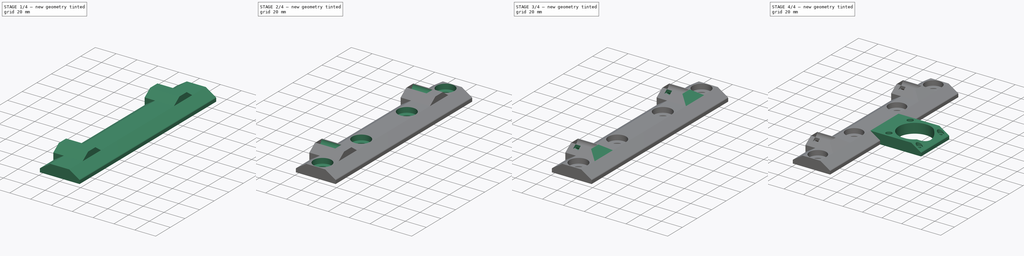
[diagram: build sequence overview — one tinted view per stage of 4, left to right]
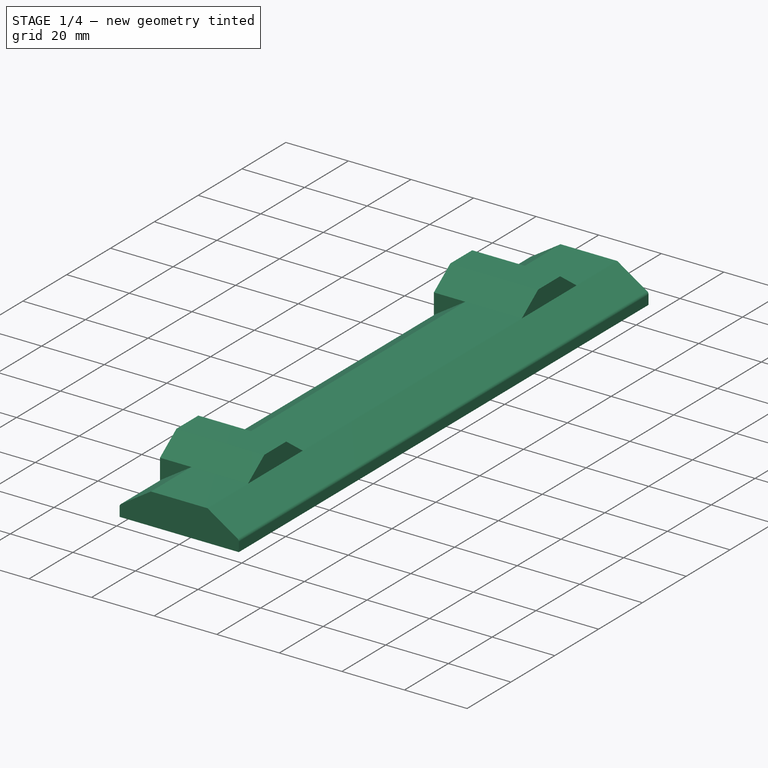
[diagram: stage 1 of 4 — iso view after this stage's code; geometry added in this stage tinted green]
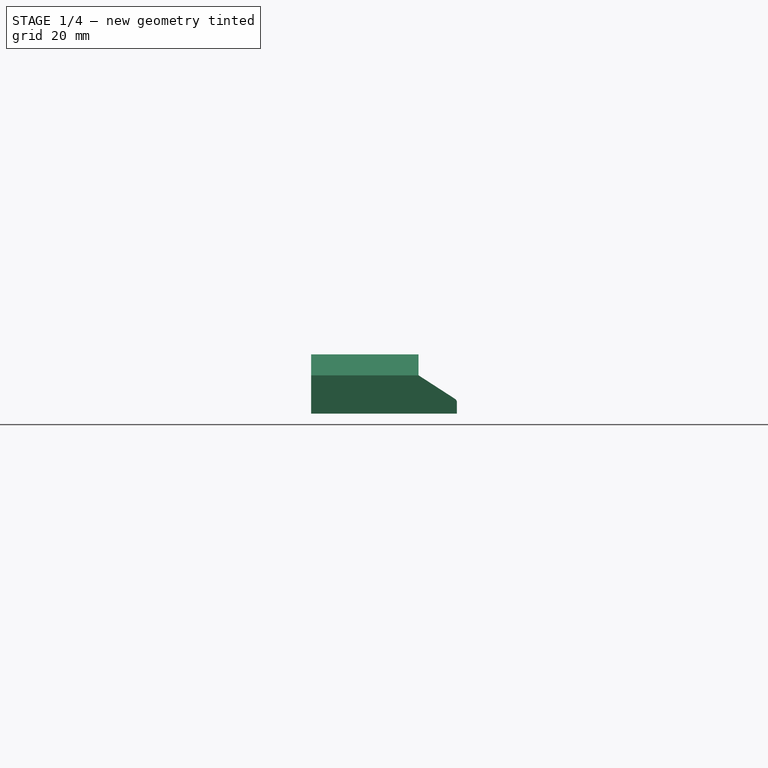
[diagram: stage 1 of 4 — front view after this stage's code; geometry added in this stage tinted green]
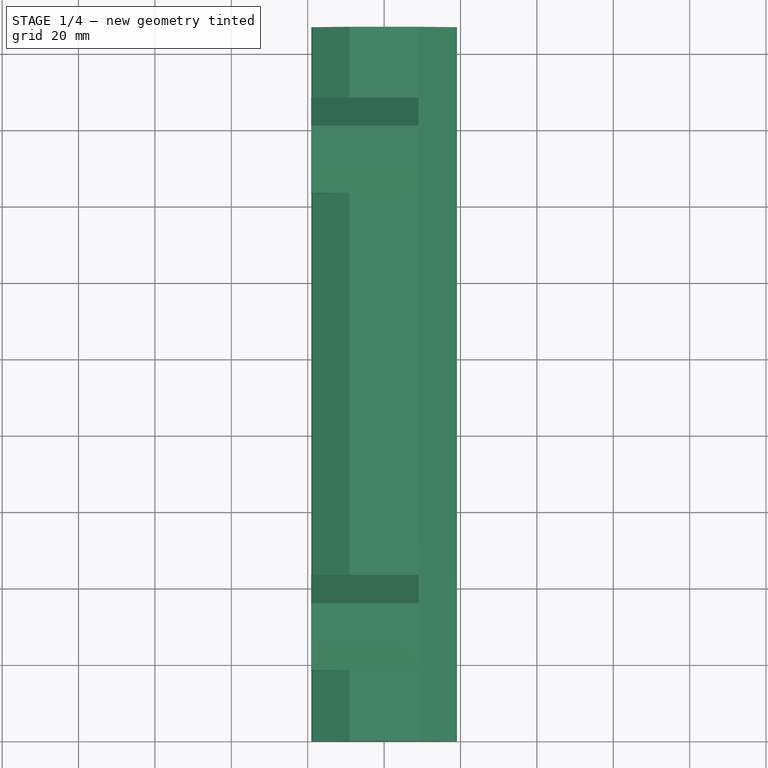
[diagram: stage 1 of 4 — top view after this stage's code; geometry added in this stage tinted green]
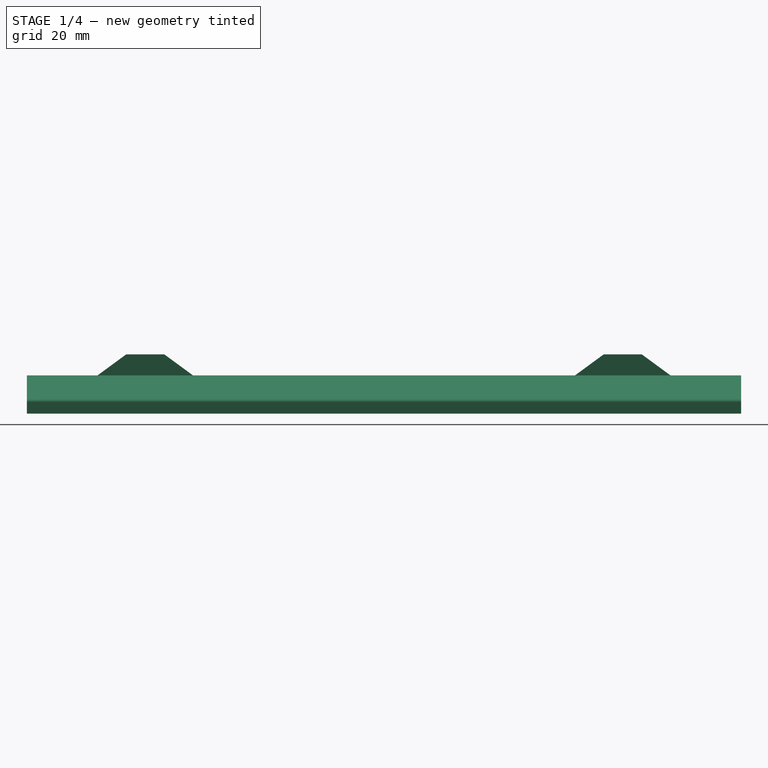
[diagram: stage 1 of 4 — right view after this stage's code; geometry added in this stage tinted green]
FCSTD DOCUMENT  (FreeCAD 0.18R)
Label: y-back-mounts
License: All rights reserved
LicenseURL: http://en.wikipedia.org/wiki/All_rights_reserved
objects: Sketcher::SketchObject×12, PartDesign::Pocket×8, PartDesign::Pad×4, Part::Feature×2, PartDesign::Body×1
note: 39 computed .brp shape members not serialized (recipe doc carries the construction recipe); baked Part::Feature solids carry a one-line shape summary decoded from their .brp

FEATURE [Sketcher::SketchObject] Sketch
  MapMode = 5
  Placement = pos=(0,0,0) rot=(1,0,0;1.5708rad)
  Support = -> [XZ_Plane]
  sketch-geometry (9):
    g0: LineSegment StartX=0 StartY=0 StartZ=0 EndX=-19.05 EndY=0 EndZ=0
    g1: LineSegment StartX=0 StartY=0 StartZ=0 EndX=19.05 EndY=0 EndZ=0
    g2: LineSegment StartX=-9.05 StartY=10 StartZ=0 EndX=9.05 EndY=10 EndZ=0
    g3: LineSegment StartX=-9.05 StartY=10 StartZ=0 EndX=-18.5923 EndY=3.84016 EndZ=0
    g4: LineSegment StartX=9.05 StartY=10 StartZ=0 EndX=18.5923 EndY=3.84016 EndZ=0
    g5: LineSegment StartX=19.05 StartY=0 StartZ=0 EndX=19.05 EndY=3 EndZ=0
    g6: LineSegment StartX=-19.05 StartY=0 StartZ=0 EndX=-19.05 EndY=3 EndZ=0
    g7: ArcOfCircle CenterX=-18.05 CenterY=3 CenterZ=0 NormalX=0 NormalY=0 NormalZ=1 AngleXU=0 Radius=1 StartAngle=2.14402 EndAngle=3.14159
    g8: ArcOfCircle CenterX=18.05 CenterY=3 CenterZ=0 NormalX=0 NormalY=0 NormalZ=1 AngleXU=0 Radius=1 StartAngle=0 EndAngle=0.997572
  constraints (24):
    c: Coincident(g0,g-1)
    c: Horizontal(g0)
    c: Coincident(g1,g0)
    c: Horizontal(g1)
    c: DistanceX(g0,g0) = 19.05
    c: Equal(g1,g0)
    c: Horizontal(g2)
    c: DistanceY(g0,g2) = 10
    c: DistanceX(g2,g1) = 10
    c: DistanceX(g0,g2) = 10
    c: Coincident(g3,g2)
    c: Coincident(g4,g2)
    c: Coincident(g5,g1)
    c: Vertical(g5)
    c: Coincident(g6,g0)
    c: Vertical(g6)
    c: Tangent(g3,g7) = -1.5708
    c: Tangent(g6,g7) = 1.5708
    c: DistanceX(g6,g7) = 1
    c: DistanceY(g6,g6) = 3
    c: Tangent(g4,g8) = 1.5708
    c: Tangent(g5,g8) = -1.5708
    c: Equal(g5,g6)
    c: DistanceX(g8,g5) = 1
FEATURE [PartDesign::Pad] Pad
  Length = 187
  Length2 = 100
  Placement = pos=(0,0,0) rot=(1,0,0;1.5708rad)
  Profile = -> Sketch
  Reversed = true
  Type = 0
FEATURE [Sketcher::SketchObject] Sketch001
  MapMode = 5
  Support = -> [XY_Plane]
  sketch-geometry (4):
    g0: Circle CenterX=0 CenterY=177.75 CenterZ=0 NormalX=0 NormalY=0 NormalZ=1 AngleXU=0 Radius=4.05
    g1: Circle CenterX=0 CenterY=9.25 CenterZ=0 NormalX=0 NormalY=0 NormalZ=1 AngleXU=0 Radius=4.05
    g2: Circle CenterX=0 CenterY=124.75 CenterZ=0 NormalX=0 NormalY=0 NormalZ=1 AngleXU=0 Radius=4.05
    g3: Circle CenterX=0 CenterY=62.25 CenterZ=0 NormalX=0 NormalY=0 NormalZ=1 AngleXU=0 Radius=4.05
  constraints (12):
    c: PointOnObject(g2,g-2)
    c: Diameter(g0) = 8.1
    c: Equal(g0,g2)
    c: Equal(g0,g3)
    c: Equal(g0,g1)
    c: PointOnObject(g0,g-2)
    c: PointOnObject(g1,g-2)
    c: PointOnObject(g3,g-2)
    c: DistanceY(g-1,g1) = 9.25
    c: DistanceY(g2,g0) = 53
    c: DistanceY(g1,g3) = 53
    c: DistanceY(g3,g2) = 62.5
FEATURE [Sketcher::SketchObject] Sketch002
  AttachmentOffset = pos=(18.5,0,9) rot=(0,0,1;0rad)
  MapMode = 5
  Placement = pos=(9,18.5,-2.1e-15) rot=(0.57735,0.57735,0.57735;2.0944rad)
  Support = -> [YZ_Plane]
  sketch-geometry (6):
    g0: LineSegment StartX=0 StartY=0 StartZ=0 EndX=25 EndY=0 EndZ=0
    g1: LineSegment StartX=0 StartY=0 StartZ=0 EndX=0 EndY=10 EndZ=0
    g2: LineSegment StartX=25 StartY=0 StartZ=0 EndX=25 EndY=10 EndZ=0
    g3: LineSegment StartX=7.5 StartY=15.5 StartZ=0 EndX=17.5 EndY=15.5 EndZ=0
    g4: LineSegment StartX=0 StartY=10 StartZ=0 EndX=7.5 EndY=15.5 EndZ=0
    g5: LineSegment StartX=17.5 StartY=15.5 StartZ=0 EndX=25 EndY=10 EndZ=0
  constraints (17):
    c: PointOnObject(g0,g-1)
    c: DistanceX(g0,g0) = 25
    c: Coincident(g1,g0)
    c: Vertical(g1)
    c: Coincident(g2,g0)
    c: Vertical(g2)
    c: DistanceY(g1,g1) = 10
    c: Equal(g2,g1)
    c: Horizontal(g3)
    c: DistanceY(g0,g3) = 15.5
    c: DistanceX(g3,g3) = 10
    c: Coincident(g4,g1)
    c: Coincident(g4,g3)
    c: Coincident(g5,g3)
    c: Coincident(g5,g2)
    c: Equal(g5,g4)
    c: Coincident(g0,g-1)
FEATURE [PartDesign::Pad] Pad001
  BaseFeature = -> Pad
  Length = 28.1
  Length2 = 100
  Placement = pos=(0,0,0) rot=(1,0,0;1.5708rad)
  Profile = -> Sketch002
  Reversed = true
  Type = 0
FEATURE [Sketcher::SketchObject] Sketch004
  AttachmentOffset = pos=(143.5,0,9) rot=(0,0,1;0rad)
  MapMode = 5
  Placement = pos=(9,143.5,-2.99e-14) rot=(0.57735,0.57735,0.57735;2.0944rad)
  Support = -> [YZ_Plane]
  sketch-geometry (6):
    g0: LineSegment StartX=0 StartY=0 StartZ=0 EndX=25 EndY=0 EndZ=0
    g1: LineSegment StartX=0 StartY=0 StartZ=0 EndX=0 EndY=10 EndZ=0
    g2: LineSegment StartX=25 StartY=0 StartZ=0 EndX=25 EndY=10 EndZ=0
    g3: LineSegment StartX=7.5 StartY=15.5 StartZ=0 EndX=17.5 EndY=15.5 EndZ=0
    g4: LineSegment StartX=0 StartY=10 StartZ=0 EndX=7.5 EndY=15.5 EndZ=0
    g5: LineSegment StartX=17.5 StartY=15.5 StartZ=0 EndX=25 EndY=10 EndZ=0
  constraints (17):
    c: PointOnObject(g0,g-1)
    c: DistanceX(g0,g0) = 25
    c: Coincident(g1,g0)
    c: Vertical(g1)
    c: Coincident(g2,g0)
    c: Vertical(g2)
    c: DistanceY(g1,g1) = 10
    c: Equal(g2,g1)
    c: Horizontal(g3)
    c: DistanceY(g0,g3) = 15.5
    c: DistanceX(g3,g3) = 10
    c: Coincident(g4,g1)
    c: Coincident(g4,g3)
    c: Coincident(g5,g3)
    c: Coincident(g5,g2)
    c: Equal(g5,g4)
    c: Coincident(g0,g-1)
FEATURE [PartDesign::Pad] Pad003
  BaseFeature = -> Pad001
  Length = 28.1
  Length2 = 100
  Placement = pos=(0,0,0) rot=(1,0,0;1.5708rad)
  Profile = -> Sketch004
  Reversed = true
  Type = 0
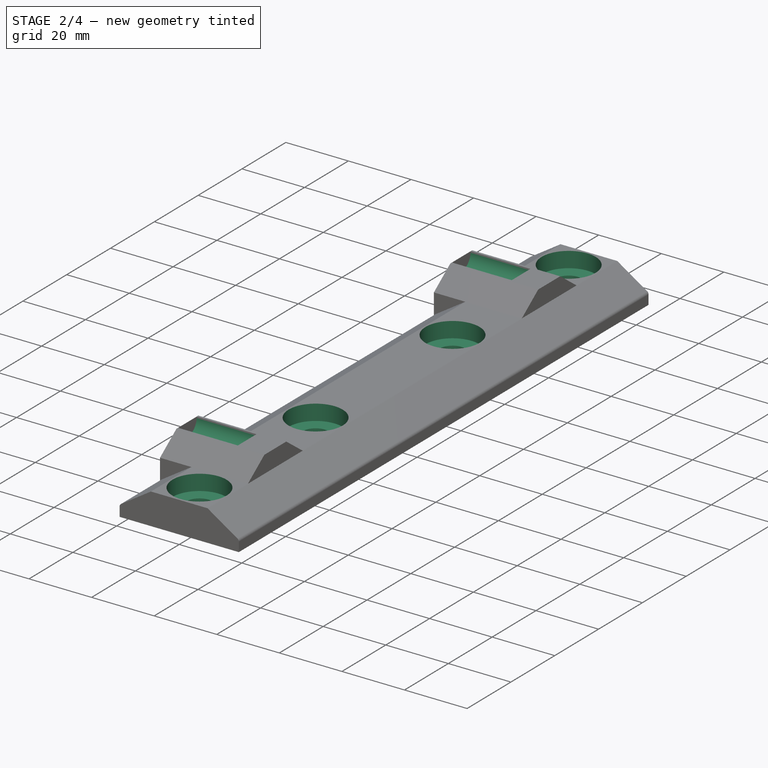
[diagram: stage 2 of 4 — iso view after this stage's code; geometry added in this stage tinted green]
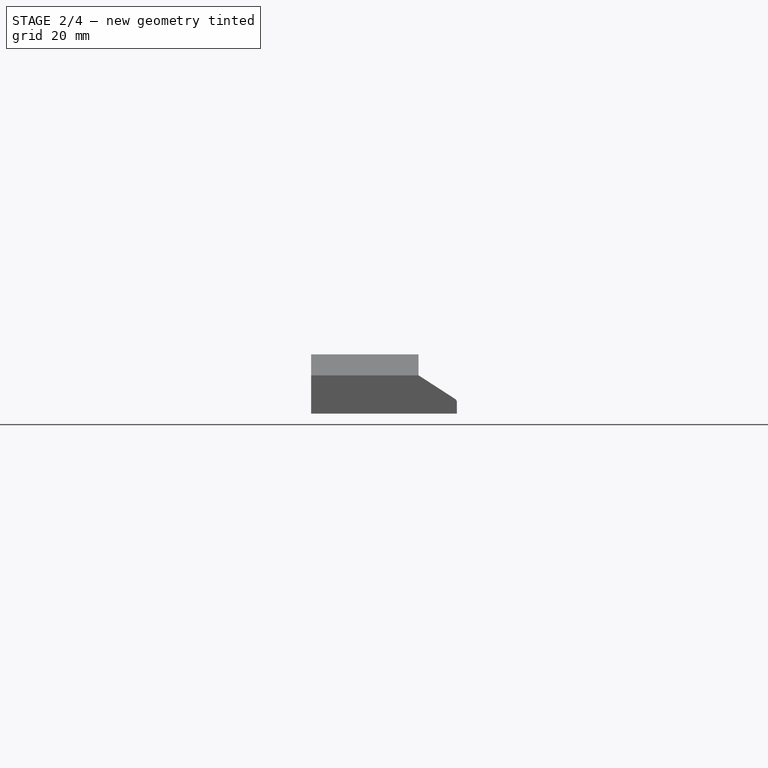
[diagram: stage 2 of 4 — front view after this stage's code; geometry added in this stage tinted green]
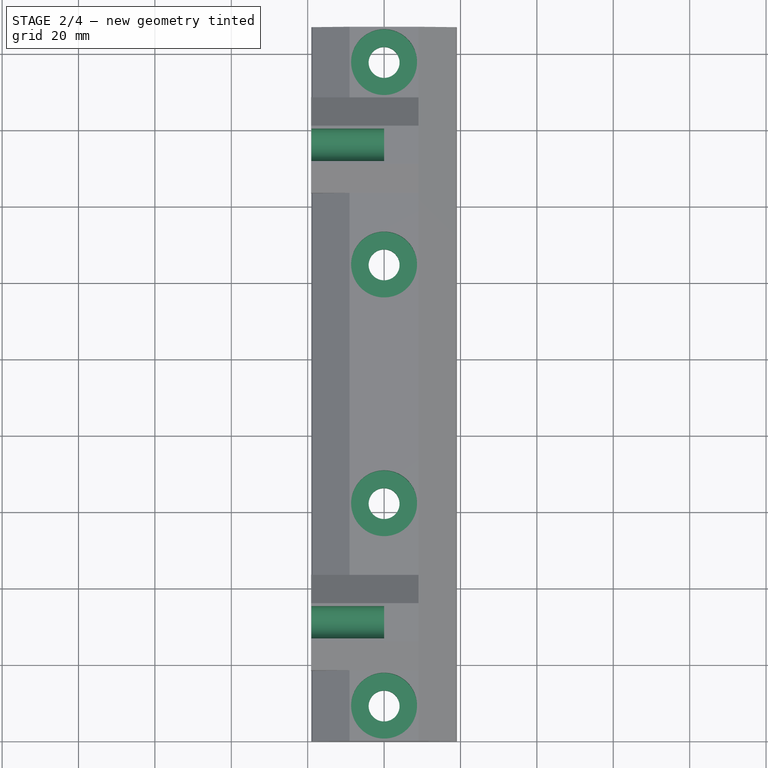
[diagram: stage 2 of 4 — top view after this stage's code; geometry added in this stage tinted green]
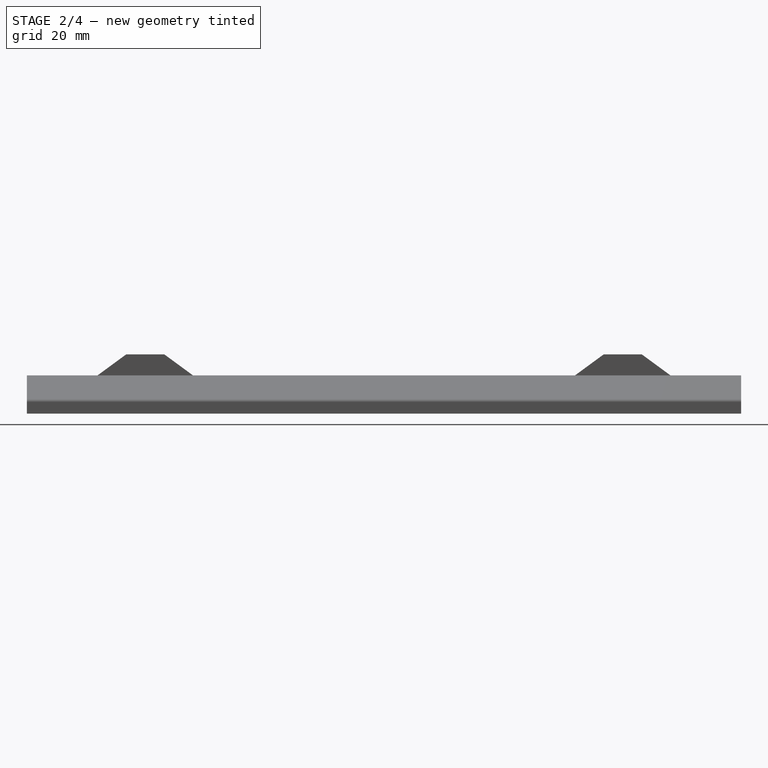
[diagram: stage 2 of 4 — right view after this stage's code; geometry added in this stage tinted green]
FEATURE [PartDesign::Pocket] Pocket
  BaseFeature = -> Pad003
  Length = 5
  Length2 = 100
  Placement = pos=(0,0,0) rot=(1,0,0;1.5708rad)
  Profile = -> Sketch001
  Reversed = true
  Type = 1
FEATURE [Sketcher::SketchObject] Sketch005
  AttachmentOffset = pos=(0,0,10) rot=(0,0,1;0rad)
  MapMode = 5
  Placement = pos=(0,0,10) rot=(0,0,1;0rad)
  Support = -> [XY_Plane]
  sketch-geometry (4):
    g0: Circle CenterX=0 CenterY=177.75 CenterZ=0 NormalX=0 NormalY=0 NormalZ=1 AngleXU=0 Radius=8.625
    g1: Circle CenterX=0 CenterY=124.75 CenterZ=0 NormalX=0 NormalY=0 NormalZ=1 AngleXU=0 Radius=8.625
    g2: Circle CenterX=0 CenterY=9.25 CenterZ=0 NormalX=0 NormalY=0 NormalZ=1 AngleXU=0 Radius=8.625
    g3: Circle CenterX=0 CenterY=62.25 CenterZ=0 NormalX=0 NormalY=0 NormalZ=1 AngleXU=0 Radius=8.625
  constraints (12):
    c: PointOnObject(g1,g-2)
    c: PointOnObject(g2,g-2)
    c: Diameter(g0) = 17.25
    c: Equal(g1,g0)
    c: Equal(g1,g2)
    c: PointOnObject(g3,g-2)
    c: Equal(g0,g3)
    c: DistanceY(g-1,g2) = 9.25
    c: DistanceY(g2,g3) = 53
    c: DistanceY(g3,g1) = 62.5
    c: DistanceY(g1,g0) = 53
    c: PointOnObject(g0,g-2)
FEATURE [PartDesign::Pocket] Pocket001
  BaseFeature = -> Pocket
  Length = 5
  Length2 = 100
  Placement = pos=(0,0,0) rot=(1,0,0;1.5708rad)
  Profile = -> Sketch005
  Type = 0
FEATURE [Sketcher::SketchObject] Sketch006
  AttachmentOffset = pos=(0,0,-19.05) rot=(0,0,1;0rad)
  MapMode = 5
  Placement = pos=(-19.05,4.2e-15,-4.2e-15) rot=(0.57735,0.57735,0.57735;2.0944rad)
  Support = -> [YZ_Plane]
  sketch-geometry (6):
    g0: ArcOfCircle CenterX=31 CenterY=15.5 CenterZ=0 NormalX=0 NormalY=0 NormalZ=1 AngleXU=0 Radius=4.25 StartAngle=3.14159 EndAngle=6.28319
    g1: LineSegment StartX=31 StartY=15.5 StartZ=0 EndX=35.25 EndY=15.5 EndZ=0
    g2: LineSegment StartX=31 StartY=15.5 StartZ=0 EndX=26.75 EndY=15.5 EndZ=0
    g3: ArcOfCircle CenterX=156 CenterY=15.5 CenterZ=0 NormalX=0 NormalY=0 NormalZ=1 AngleXU=0 Radius=4.25 StartAngle=3.14159 EndAngle=6.28319
    g4: LineSegment StartX=156 StartY=15.5 StartZ=0 EndX=160.25 EndY=15.5 EndZ=0
    g5: LineSegment StartX=156 StartY=15.5 StartZ=0 EndX=151.75 EndY=15.5 EndZ=0
  constraints (18):
    c: Radius(g0) = 4.25
    c: DistanceY(g-1,g0) = 15.5
    c: DistanceX(g-1,g0) = 31
    c: Coincident(g1,g0)
    c: Horizontal(g1)
    c: Coincident(g2,g0)
    c: Horizontal(g2)
    c: Coincident(g0,g2)
    c: Coincident(g0,g1)
    c: Equal(g3,g0)
    c: DistanceY(g3,g0) = 0
    c: DistanceX(g0,g3) = 125
    c: Coincident(g4,g3)
    c: Horizontal(g4)
    c: Coincident(g5,g3)
    c: Horizontal(g5)
    c: Coincident(g3,g5)
    c: Coincident(g3,g4)
FEATURE [PartDesign::Pocket] Pocket002
  BaseFeature = -> Pocket001
  Length = 19.05
  Length2 = 100
  Placement = pos=(0,0,0) rot=(1,0,0;1.5708rad)
  Profile = -> Sketch006
  Reversed = true
  Type = 0
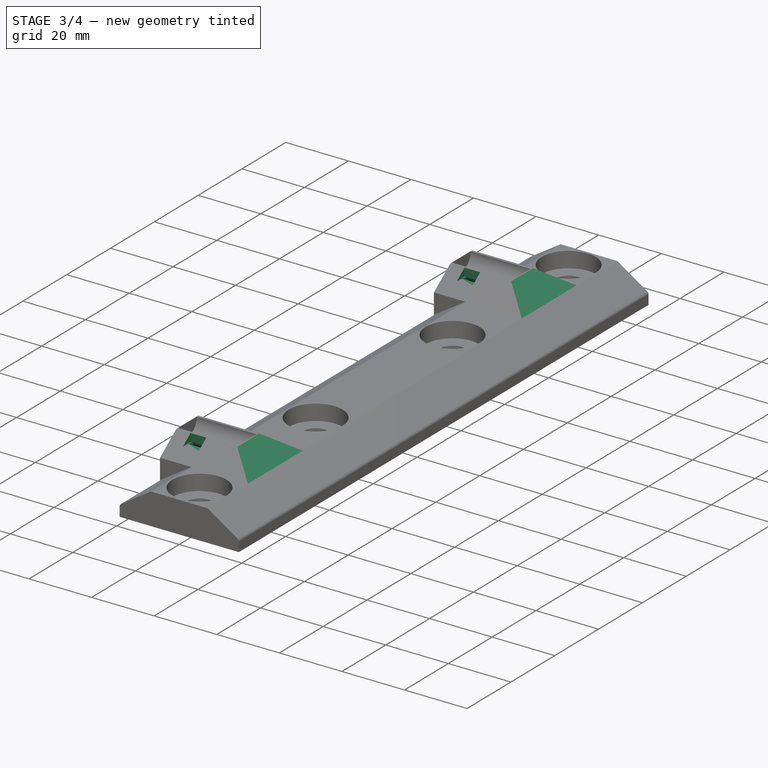
[diagram: stage 3 of 4 — iso view after this stage's code; geometry added in this stage tinted green]
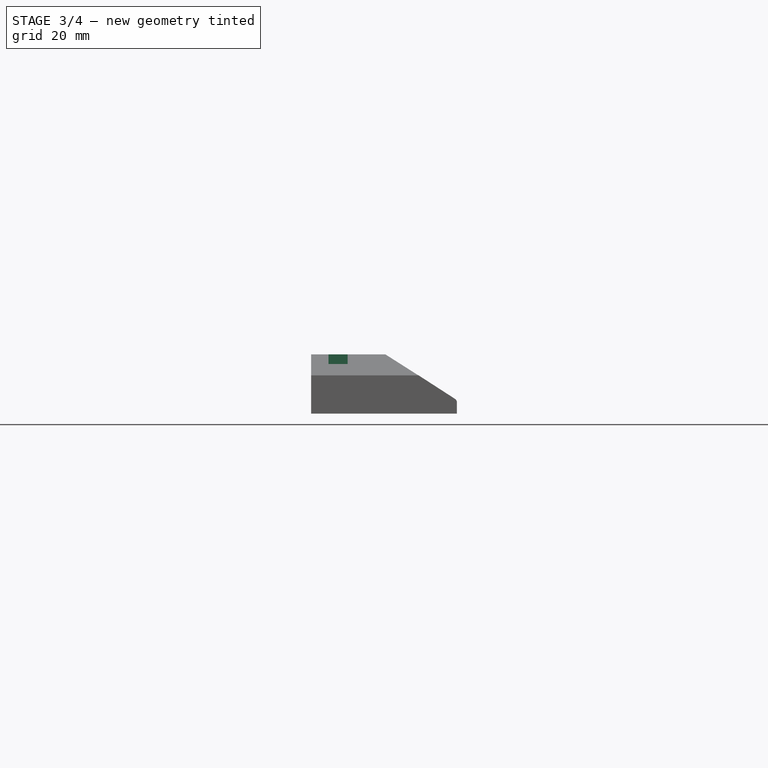
[diagram: stage 3 of 4 — front view after this stage's code; geometry added in this stage tinted green]
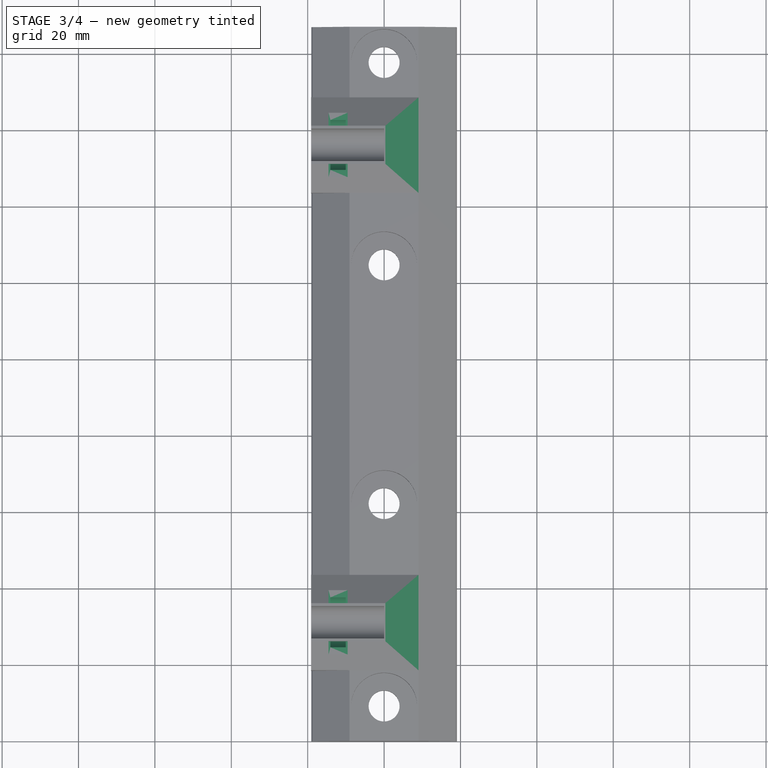
[diagram: stage 3 of 4 — top view after this stage's code; geometry added in this stage tinted green]
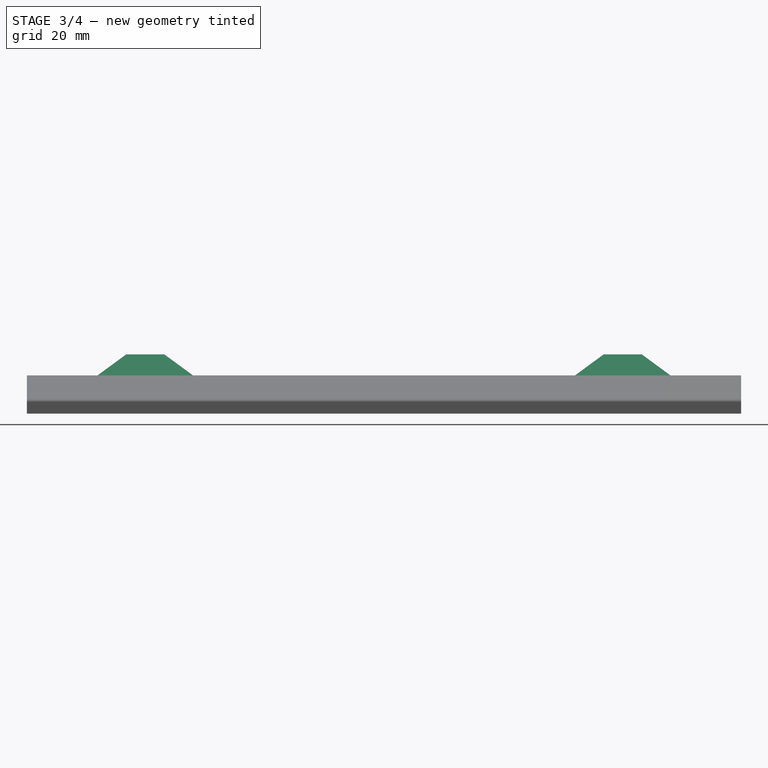
[diagram: stage 3 of 4 — right view after this stage's code; geometry added in this stage tinted green]
FEATURE [Sketcher::SketchObject] Sketch007
  AttachmentOffset = pos=(0,0,-14.05) rot=(0,0,1;0rad)
  MapMode = 5
  Placement = pos=(-14.05,3.1e-15,-3.1e-15) rot=(0.57735,0.57735,0.57735;2.0944rad)
  Support = -> [YZ_Plane]
  sketch-geometry (4):
    g0: Circle CenterX=31 CenterY=15.5 CenterZ=0 NormalX=0 NormalY=0 NormalZ=1 AngleXU=0 Radius=5.6
    g1: Circle CenterX=31 CenterY=15.5 CenterZ=0 NormalX=0 NormalY=0 NormalZ=1 AngleXU=0 Radius=7
    g2: Circle CenterX=156 CenterY=15.5 CenterZ=0 NormalX=0 NormalY=0 NormalZ=1 AngleXU=0 Radius=5.6
    g3: Circle CenterX=156 CenterY=15.5 CenterZ=0 NormalX=0 NormalY=0 NormalZ=1 AngleXU=0 Radius=7
  constraints (10):
    c: Coincident(g1,g0)
    c: Radius(g0) = 5.6
    c: Radius(g1) = 7
    c: DistanceY(g-1,g0) = 15.5
    c: DistanceX(g-1,g0) = 31
    c: Coincident(g3,g2)
    c: Equal(g2,g0)
    c: Equal(g3,g1)
    c: DistanceY(g0,g2) = 0
    c: DistanceX(g0,g2) = 125
FEATURE [PartDesign::Pocket] Pocket003
  BaseFeature = -> Pocket002
  Length = 4
  Length2 = 100
  Placement = pos=(0,0,0) rot=(1,0,0;1.5708rad)
  Profile = -> Sketch007
  Reversed = true
  Type = 0
FEATURE [Sketcher::SketchObject] Sketch008
  MapMode = 5
  Placement = pos=(0,0,0) rot=(1,0,0;1.5708rad)
  Support = -> [XZ_Plane]
  sketch-geometry (3):
    g0: LineSegment StartX=0.186016 StartY=15.6 StartZ=0 EndX=9 EndY=15.6 EndZ=0
    g1: LineSegment StartX=9 StartY=15.6 StartZ=0 EndX=9 EndY=10 EndZ=0
    g2: LineSegment StartX=0.186016 StartY=15.6 StartZ=0 EndX=9 EndY=10 EndZ=0
  constraints (9):
    c: Horizontal(g0)
    c: Coincident(g1,g0)
    c: Vertical(g1)
    c: Coincident(g2,g0)
    c: Coincident(g2,g1)
    c: DistanceY(g-1,g1) = 10
    c: DistanceX(g-1,g0) = 9
    c: DistanceY(g-1,g0) = 15.6
    c: Angle(g1,g2) = 1.00479
FEATURE [PartDesign::Pocket] Pocket004
  BaseFeature = -> Pocket003
  Length = 5
  Length2 = 100
  Placement = pos=(0,0,0) rot=(1,0,0;1.5708rad)
  Profile = -> Sketch008
  Type = 1
FEATURE [Sketcher::SketchObject] Sketch009
  AttachmentOffset = pos=(0,0,-14.55) rot=(0,0,1;0rad)
  MapMode = 5
  Placement = pos=(-14.55,3.2e-15,-3.2e-15) rot=(0.57735,0.57735,0.57735;2.0944rad)
  Support = -> [YZ_Plane]
  sketch-geometry (16):
    g0: LineSegment StartX=22 StartY=16.48 StartZ=0 EndX=26 EndY=16.48 EndZ=0
    g1: LineSegment StartX=26 StartY=16.48 StartZ=0 EndX=26 EndY=12.98 EndZ=0
    g2: LineSegment StartX=26 StartY=12.98 StartZ=0 EndX=22 EndY=12.98 EndZ=0
    g3: LineSegment StartX=22 StartY=12.98 StartZ=0 EndX=22 EndY=16.48 EndZ=0
    g4: LineSegment StartX=36 StartY=16.48 StartZ=0 EndX=40 EndY=16.48 EndZ=0
    g5: LineSegment StartX=40 StartY=16.48 StartZ=0 EndX=40 EndY=12.98 EndZ=0
    g6: LineSegment StartX=40 StartY=12.98 StartZ=0 EndX=36 EndY=12.98 EndZ=0
    g7: LineSegment StartX=36 StartY=12.98 StartZ=0 EndX=36 EndY=16.48 EndZ=0
    g8: LineSegment StartX=147 StartY=16.48 StartZ=0 EndX=151 EndY=16.48 EndZ=0
    g9: LineSegment StartX=151 StartY=16.48 StartZ=0 EndX=151 EndY=12.98 EndZ=0
    g10: LineSegment StartX=151 StartY=12.98 StartZ=0 EndX=147 EndY=12.98 EndZ=0
    g11: LineSegment StartX=147 StartY=12.98 StartZ=0 EndX=147 EndY=16.48 EndZ=0
    g12: LineSegment StartX=161 StartY=16.48 StartZ=0 EndX=165 EndY=16.48 EndZ=0
    g13: LineSegment StartX=165 StartY=16.48 StartZ=0 EndX=165 EndY=12.98 EndZ=0
    g14: LineSegment StartX=165 StartY=12.98 StartZ=0 EndX=161 EndY=12.98 EndZ=0
    g15: LineSegment StartX=161 StartY=12.98 StartZ=0 EndX=161 EndY=16.48 EndZ=0
  constraints (48):
    c: Coincident(g0,g1)
    c: Coincident(g1,g2)
    c: Coincident(g2,g3)
    c: Coincident(g3,g0)
    c: Horizontal(g0)
    c: Horizontal(g2)
    c: Vertical(g1)
    c: Vertical(g3)
    c: Coincident(g4,g5)
    c: Coincident(g5,g6)
    c: Coincident(g6,g7)
    c: Coincident(g7,g4)
    c: Horizontal(g4)
    c: Horizontal(g6)
    c: Vertical(g5)
    c: Vertical(g7)
    c: DistanceX(g0,g0) = 4
    c: Equal(g4,g0)
    c: DistanceY(g4,g0) = 0
    c: DistanceY(g-1,g2) = 12.98
    c: DistanceY(g3,g3) = 3.5
    c: Equal(g7,g1)
    c: DistanceX(g0,g4) = 10
    c: DistanceX(g-1,g2) = 22
    c: Coincident(g8,g9)
    c: Coincident(g9,g10)
    c: Coincident(g10,g11)
    c: Coincident(g11,g8)
    c: Horizontal(g8)
    c: Horizontal(g10)
    c: Vertical(g9)
    c: Vertical(g11)
    c: Coincident(g12,g13)
    c: Coincident(g13,g14)
    c: Coincident(g14,g15)
    c: Coincident(g15,g12)
    c: Horizontal(g12)
    c: Horizontal(g14)
    c: Vertical(g13)
    c: Vertical(g15)
    c: Equal(g12,g8)
    c: Equal(g8,g4)
    c: Equal(g15,g11)
    c: Equal(g11,g3)
    c: DistanceY(g4,g8) = 0
    c: DistanceY(g8,g12) = 0
    c: DistanceX(g8,g12) = 10
    c: DistanceX(g2,g10) = 125
FEATURE [PartDesign::Pocket] Pocket005
  BaseFeature = -> Pocket004
  Length = 5
  Length2 = 100
  Placement = pos=(0,0,0) rot=(1,0,0;1.5708rad)
  Profile = -> Sketch009
  Reversed = true
  Type = 0
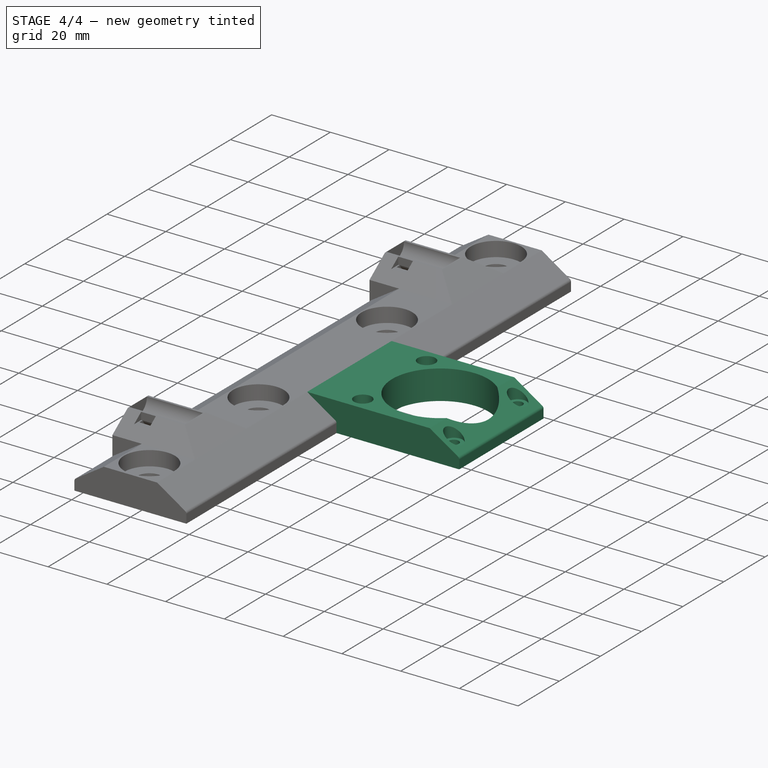
[diagram: stage 4 of 4 — iso view after this stage's code; geometry added in this stage tinted green]
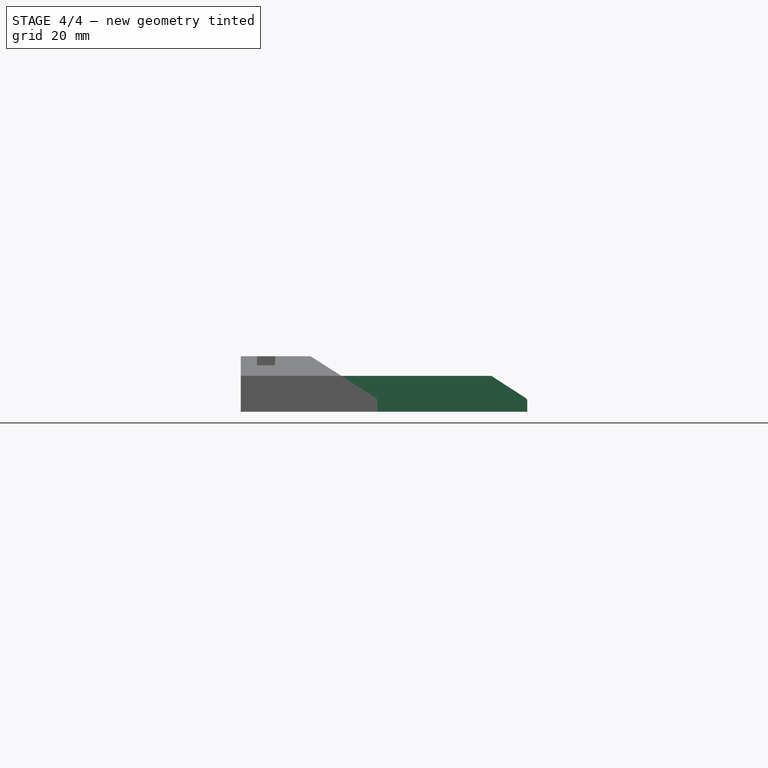
[diagram: stage 4 of 4 — front view after this stage's code; geometry added in this stage tinted green]
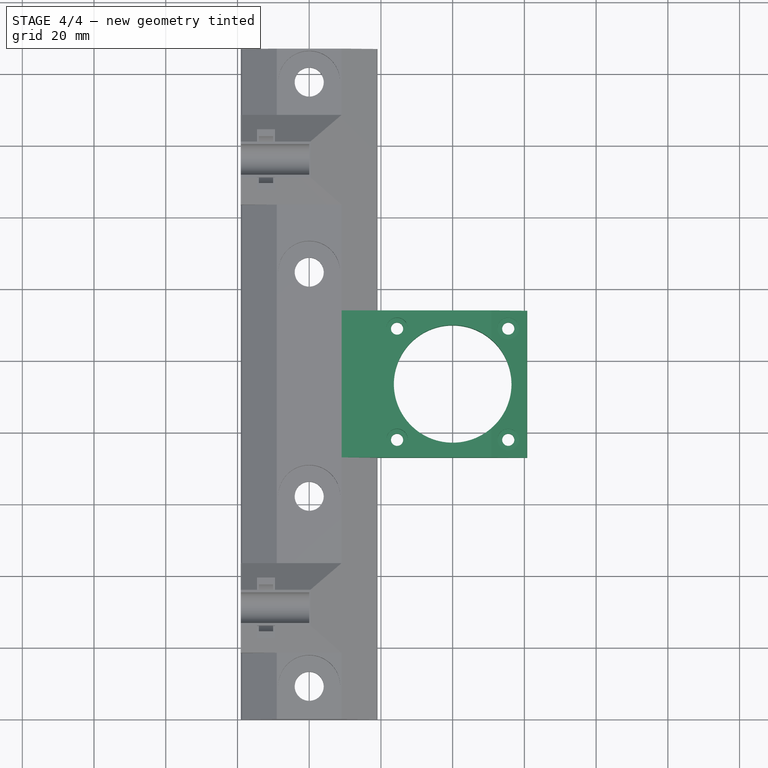
[diagram: stage 4 of 4 — top view after this stage's code; geometry added in this stage tinted green]
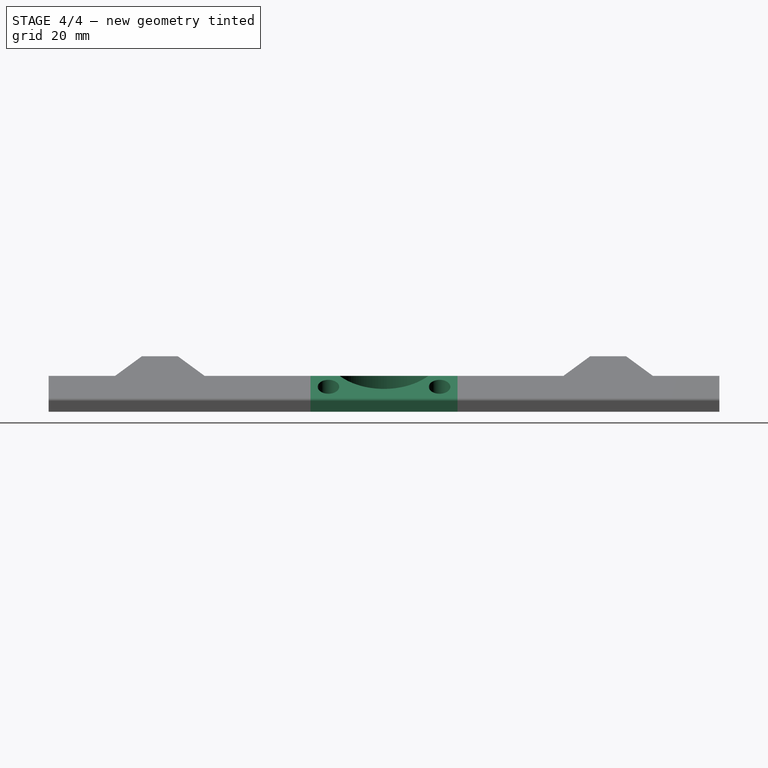
[diagram: stage 4 of 4 — right view after this stage's code; geometry added in this stage tinted green]
FEATURE [Part::Feature] y_stepper_mount_hz
  Placement = pos=(19,114,0) rot=(0,0,1;3.14159rad)
  shape: bbox 79.86 x 41 x 10.98 mm, 35 faces (baked)
FEATURE [Sketcher::SketchObject] Sketch012
  AttachmentOffset = pos=(0,0,-73) rot=(0,0,1;0rad)
  MapMode = 5
  Placement = pos=(0,73,-1.62e-14) rot=(1,0,0;1.5708rad)
  Support = -> [XZ_Plane]
  sketch-geometry (6):
    g0: LineSegment StartX=9.05 StartY=10 StartZ=0 EndX=50.81 EndY=10 EndZ=0
    g1: LineSegment StartX=50.81 StartY=10 StartZ=0 EndX=60.3523 EndY=3.84016 EndZ=0
    g2: LineSegment StartX=60.81 StartY=3 StartZ=0 EndX=60.81 EndY=0 EndZ=0
    g3: LineSegment StartX=60.81 StartY=0 StartZ=0 EndX=9.05 EndY=0 EndZ=0
    g4: LineSegment StartX=9.05 StartY=0 StartZ=0 EndX=9.05 EndY=10 EndZ=0
    g5: ArcOfCircle CenterX=59.81 CenterY=3 CenterZ=0 NormalX=0 NormalY=0 NormalZ=1 AngleXU=0 Radius=1 StartAngle=0 EndAngle=0.997572
  constraints (17):
    c: Horizontal(g0)
    c: Coincident(g1,g0)
    c: PointOnObject(g2,g-1)
    c: Vertical(g2)
    c: Coincident(g3,g2)
    c: Horizontal(g3)
    c: Coincident(g4,g3)
    c: Coincident(g4,g0)
    c: Vertical(g4)
    c: Tangent(g1,g5) = 1.5708
    c: Tangent(g2,g5) = 1.5708
    c: DistanceY(g2,g2) = 3
    c: DistanceX(g0,g2) = 10
    c: DistanceX(g5,g2) = 1
    c: DistanceY(g2,g0) = 10
    c: DistanceX(g-1,g3) = 9.05
    c: DistanceX(g3,g3) = 51.76
FEATURE [PartDesign::Pad] Pad005
  BaseFeature = -> Pocket005
  Length = 41
  Length2 = 100
  Placement = pos=(0,0,0) rot=(1,0,0;1.5708rad)
  Profile = -> Sketch012
  Reversed = true
  Type = 0
FEATURE [Sketcher::SketchObject] Sketch013
  MapMode = 5
  Support = -> [XY_Plane]
  sketch-geometry (5):
    g0: Circle CenterX=24.5 CenterY=78 CenterZ=0 NormalX=0 NormalY=0 NormalZ=1 AngleXU=0 Radius=1.7
    g1: Circle CenterX=55.5 CenterY=78 CenterZ=0 NormalX=0 NormalY=0 NormalZ=1 AngleXU=0 Radius=1.7
    g2: Circle CenterX=55.5 CenterY=109 CenterZ=0 NormalX=0 NormalY=0 NormalZ=1 AngleXU=0 Radius=1.7
    g3: Circle CenterX=24.5 CenterY=109 CenterZ=0 NormalX=0 NormalY=0 NormalZ=1 AngleXU=0 Radius=1.7
    g4: Circle CenterX=40 CenterY=93.5 CenterZ=0 NormalX=0 NormalY=0 NormalZ=1 AngleXU=0 Radius=16.4
  constraints (15):
    c: Diameter(g4) = 32.8
    c: DistanceY(g-1,g4) = 93.5
    c: DistanceX(g-1,g4) = 40
    c: DistanceX(g3,g4) = 15.5
    c: DistanceX(g4,g2) = 15.5
    c: DistanceY(g2,g3) = 0
    c: DistanceY(g4,g3) = 15.5
    c: DistanceY(g0,g3) = 31
    c: DistanceX(g0,g3) = 0
    c: DistanceY(g0,g1) = 0
    c: DistanceX(g2,g1) = 0
    c: Diameter(g3) = 3.4
    c: Equal(g2,g3)
    c: Equal(g0,g3)
    c: Equal(g1,g3)
FEATURE [Part::Feature] stepper_nema17
  Placement = pos=(40,93.5,-46) rot=(0,0,1;0rad)
  shape: bbox 41.86 x 40.63 x 69.5 mm, 80 faces (baked)
FEATURE [PartDesign::Pocket] Pocket006
  BaseFeature = -> Pad005
  Length = 5
  Length2 = 100
  Placement = pos=(0,0,0) rot=(1,0,0;1.5708rad)
  Profile = -> Sketch013
  Reversed = true
  Type = 1
FEATURE [Sketcher::SketchObject] Sketch014
  AttachmentOffset = pos=(0,0,10) rot=(0,0,1;0rad)
  MapMode = 5
  Placement = pos=(0,0,10) rot=(0,0,1;0rad)
  Support = -> [XY_Plane]
  sketch-geometry (5):
    g0: GeomPoint X=40 Y=93.5 Z=0
    g1: Circle CenterX=24.5 CenterY=109 CenterZ=0 NormalX=0 NormalY=0 NormalZ=1 AngleXU=0 Radius=3
    g2: Circle CenterX=24.5 CenterY=78 CenterZ=0 NormalX=0 NormalY=0 NormalZ=1 AngleXU=0 Radius=3
    g3: Circle CenterX=55.5 CenterY=78 CenterZ=0 NormalX=0 NormalY=0 NormalZ=1 AngleXU=0 Radius=3
    g4: Circle CenterX=55.5 CenterY=109 CenterZ=0 NormalX=0 NormalY=0 NormalZ=1 AngleXU=0 Radius=3
  constraints (14):
    c: DistanceY(g-1,g0) = 93.5
    c: DistanceX(g-1,g0) = 40
    c: Diameter(g1) = 6
    c: Equal(g4,g1)
    c: Equal(g2,g1)
    c: Equal(g3,g1)
    c: DistanceY(g1,g4) = 0
    c: DistanceY(g3,g2) = 0
    c: DistanceX(g1,g2) = 0
    c: DistanceX(g4,g3) = 0
    c: DistanceX(g1,g0) = 15.5
    c: DistanceY(g2,g0) = 15.5
    c: DistanceY(g0,g4) = 15.5
    c: DistanceX(g1,g4) = 31
FEATURE [PartDesign::Pocket] Pocket007
  BaseFeature = -> Pocket006
  Length = 5
  Length2 = 100
  Placement = pos=(0,0,0) rot=(1,0,0;1.5708rad)
  Profile = -> Sketch014
  Type = 0
FEATURE [PartDesign::Body] Body  label="y-back-mounts"
  Group = -> [Sketch,Pad,Sketch002,Pad001,Pad003,Sketch001,Sketch004,Pocket,Sketch005,Pocket001,Sketch006,Pocket002,Sketch007,Pocket003,Sketch008,Pocket004,Sketch009,Pocket005,Sketch012,Pad005,Sketch013,Pocket006,Sketch014,Pocket007]
  Origin = -> Origin
  Tip = -> Pocket007
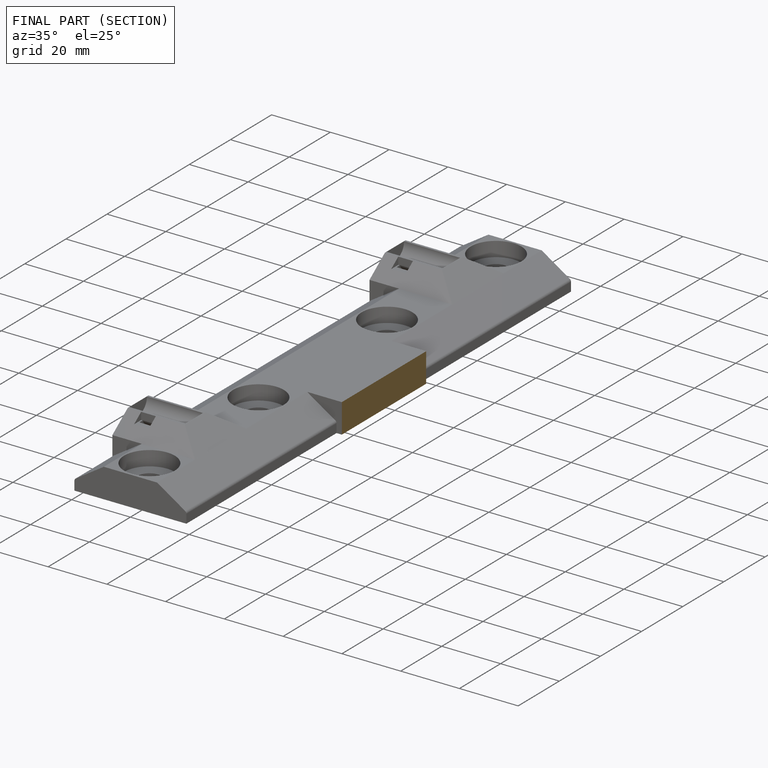
[diagram: finished part — half-section view (interior)]
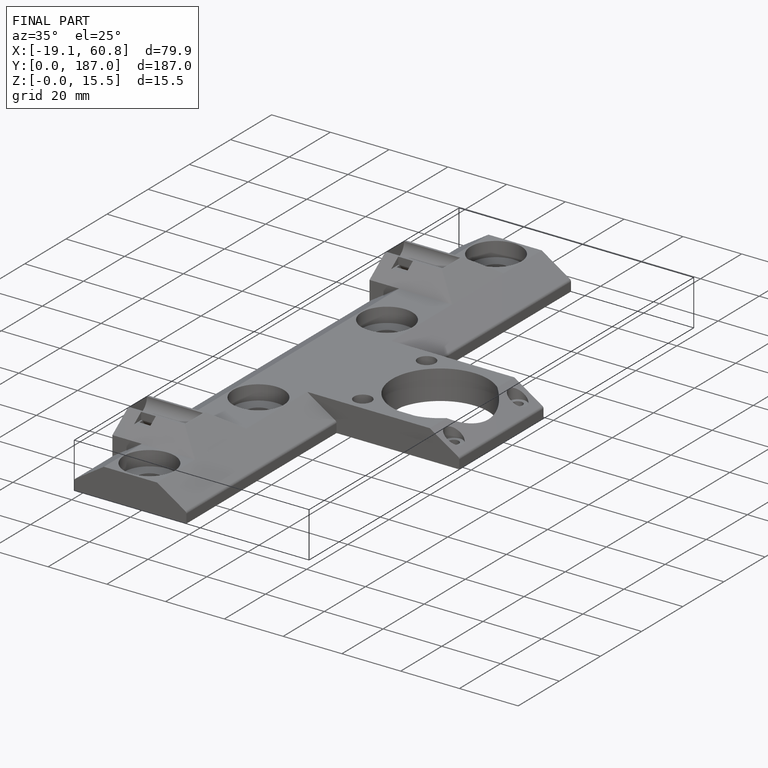
[diagram: finished part — iso view with bounding-box wireframe]
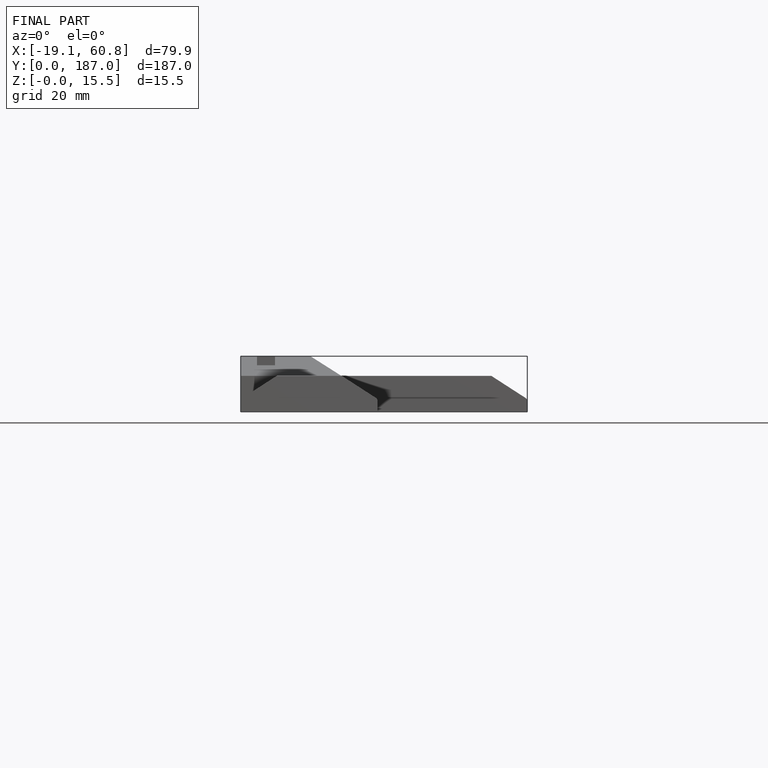
[diagram: finished part — front view with bounding-box wireframe]
